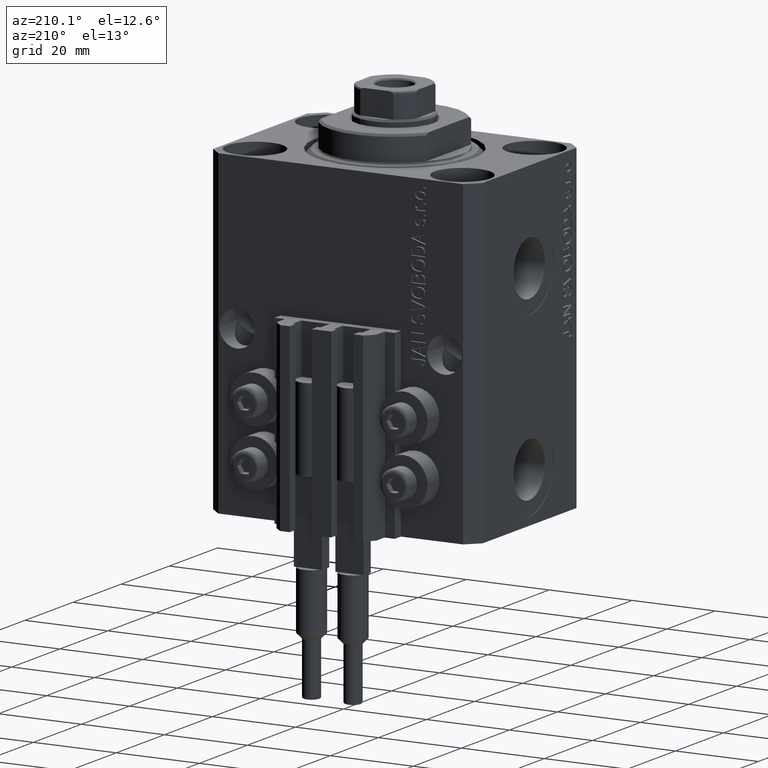
[diagram: clean part render]
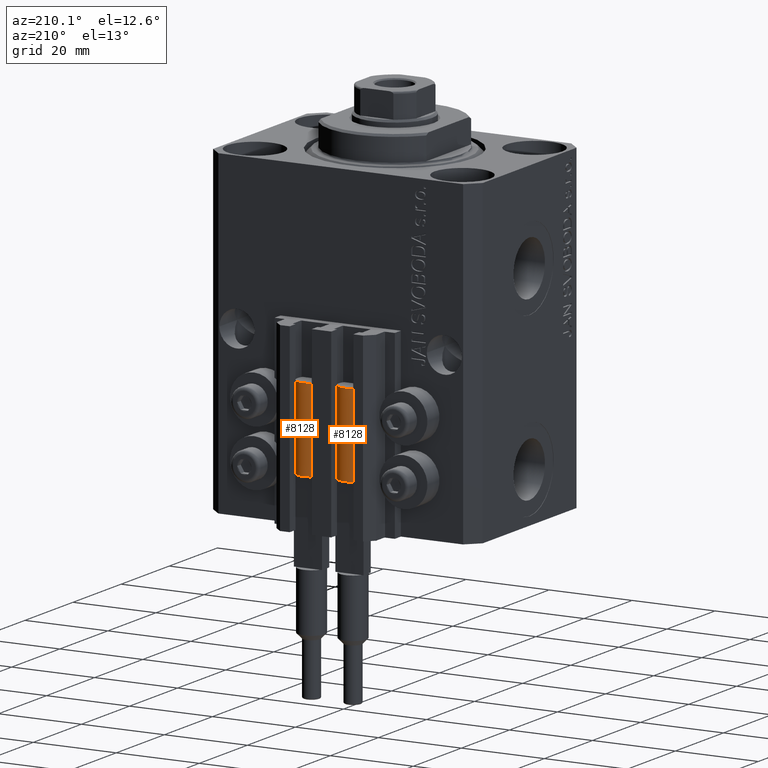
[diagram: same view with one multi-face feature highlighted, each face labeled with its STEP entity id]
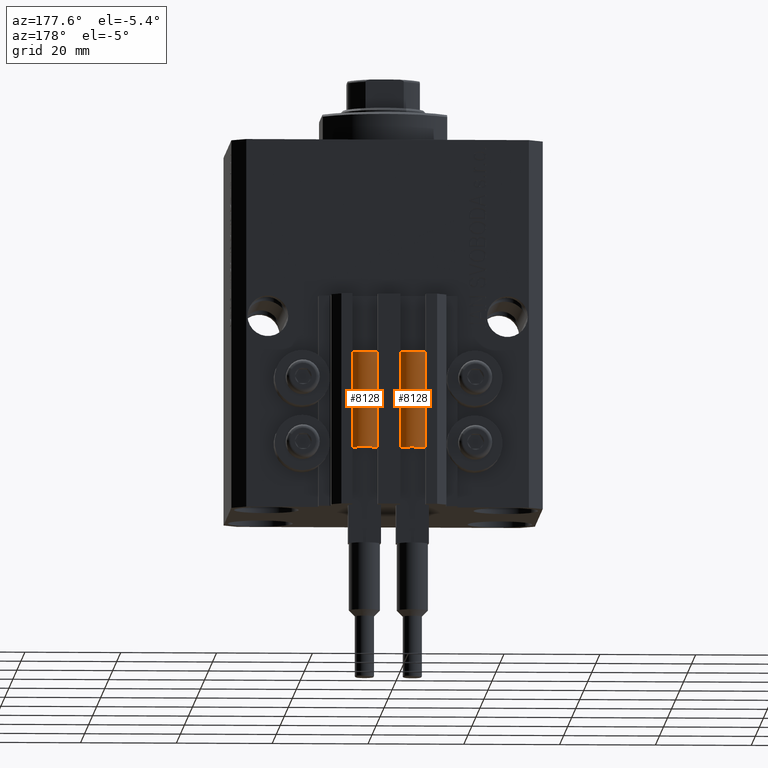
[diagram: same view with one multi-face feature highlighted, each face labeled with its STEP entity id]
A machine part, auxiliary view. The highlighted faces form ONE feature: a constant-radius fillet chain: 2 tangent blend faces with common blend radius 3.4 mm. The faces share edges in the B-rep.
A second angle (auxiliary view) of the same feature is appended — it is thin or edge-on in the first view.
Their STEP definitions:
[1] entity #8128 (Cylinder):
#1027 = EDGE_CURVE ( 'NONE', #12539, #29976, #39405, .T. ) ;
#1068 = CARTESIAN_POINT ( 'NONE',  ( 0.000000000000000000, 0.000000000000000000, 20.00000000000000000 ) ) ;
#1770 = DIRECTION ( 'NONE',  ( -1.000000000000000000, 0.000000000000000000, 0.000000000000000000 ) ) ;
#2874 = CARTESIAN_POINT ( 'NONE',  ( 0.000000000000000000, 0.000000000000000000, 0.000000000000000000 ) ) ;
#3753 = AXIS2_PLACEMENT_3D ( 'NONE', #40743, #25716, #22307 ) ;
#4671 = CARTESIAN_POINT ( 'NONE',  ( 3.400000000000000355, 4.163799117101001052E-16, 0.000000000000000000 ) ) ;
#7298 = ORIENTED_EDGE ( 'NONE', *, *, #35963, .T. ) ;
#7523 = ORIENTED_EDGE ( 'NONE', *, *, #44473, .F. ) ;
#8128 = ADVANCED_FACE ( 'NONE', ( #24105 ), #9055, .T. ) ;
#9055 = CYLINDRICAL_SURFACE ( 'NONE', #29451, 3.400000000000000355 ) ;
#9480 = CARTESIAN_POINT ( 'NONE',  ( -3.400000000000000355, 0.000000000000000000, 0.000000000000000000 ) ) ;
#9796 = LINE ( 'NONE', #24610, #30376 ) ;
#10410 = CARTESIAN_POINT ( 'NONE',  ( 0.000000000000000000, 0.000000000000000000, 20.00000000000000000 ) ) ;
#11337 = ORIENTED_EDGE ( 'NONE', *, *, #34976, .T. ) ;
#11481 = CARTESIAN_POINT ( 'NONE',  ( -3.399999999999999467, -4.915049848600952119E-16, 20.00000000000000000 ) ) ;
#12539 = VERTEX_POINT ( 'NONE', #45470 ) ;
#13059 = VERTEX_POINT ( 'NONE', #44825 ) ;
#13272 = ORIENTED_EDGE ( 'NONE', *, *, #37018, .F. ) ;
#13441 = ORIENTED_EDGE ( 'NONE', *, *, #1027, .F. ) ;
#16626 = CIRCLE ( 'NONE', #43744, 3.400000000000000355 ) ;
#17122 = VERTEX_POINT ( 'NONE', #4671 ) ;
#17681 = DIRECTION ( 'NONE',  ( 0.000000000000000000, 0.000000000000000000, 1.000000000000000000 ) ) ;
#17905 = EDGE_LOOP ( 'NONE', ( #7523, #11337, #7298, #13272, #13441, #24695 ) ) ;
#19176 = EDGE_CURVE ( 'NONE', #13059, #12539, #16626, .T. ) ;
#21690 = DIRECTION ( 'NONE',  ( 1.000000000000000000, 0.000000000000000000, 0.000000000000000000 ) ) ;
#21881 = VECTOR ( 'NONE', #37022, 1000.000000000000000 ) ;
#21996 = LINE ( 'NONE', #47475, #21881 ) ;
#22307 = DIRECTION ( 'NONE',  ( 1.000000000000000000, 0.000000000000000000, 0.000000000000000000 ) ) ;
#23389 = VERTEX_POINT ( 'NONE', #9480 ) ;
#24105 = FACE_OUTER_BOUND ( 'NONE', #17905, .T. ) ;
#24610 = CARTESIAN_POINT ( 'NONE',  ( 3.400000000000000355, 4.163799117101001052E-16, 20.00000000000000000 ) ) ;
#24695 = ORIENTED_EDGE ( 'NONE', *, *, #19176, .F. ) ;
#25716 = DIRECTION ( 'NONE',  ( 0.000000000000000000, 0.000000000000000000, 1.000000000000000000 ) ) ;
#26547 = CIRCLE ( 'NONE', #32710, 3.400000000000000355 ) ;
#28581 = CARTESIAN_POINT ( 'NONE',  ( 3.400000000000000355, 0.000000000000000000, 20.00000000000000000 ) ) ;
#29451 = AXIS2_PLACEMENT_3D ( 'NONE', #1068, #34537, #1770 ) ;
#29976 = VERTEX_POINT ( 'NONE', #11481 ) ;
#30376 = VECTOR ( 'NONE', #32595, 1000.000000000000000 ) ;
#32595 = DIRECTION ( 'NONE',  ( -0.000000000000000000, -0.000000000000000000, -1.000000000000000000 ) ) ;
#32710 = AXIS2_PLACEMENT_3D ( 'NONE', #2874, #17681, #38794 ) ;
#33663 = CIRCLE ( 'NONE', #46058, 3.400000000000000355 ) ;
#34537 = DIRECTION ( 'NONE',  ( -0.000000000000000000, -0.000000000000000000, -1.000000000000000000 ) ) ;
#34976 = EDGE_CURVE ( 'NONE', #46961, #17122, #9796, .T. ) ;
#35963 = EDGE_CURVE ( 'NONE', #17122, #23389, #26547, .T. ) ;
#37018 = EDGE_CURVE ( 'NONE', #29976, #23389, #21996, .T. ) ;
#37022 = DIRECTION ( 'NONE',  ( -0.000000000000000000, -0.000000000000000000, -1.000000000000000000 ) ) ;
#38794 = DIRECTION ( 'NONE',  ( 1.000000000000000000, 0.000000000000000000, 0.000000000000000000 ) ) ;
#39405 = CIRCLE ( 'NONE', #3753, 3.400000000000000355 ) ;
#40242 = DIRECTION ( 'NONE',  ( 0.000000000000000000, 0.000000000000000000, 1.000000000000000000 ) ) ;
#40743 = CARTESIAN_POINT ( 'NONE',  ( 0.000000000000000000, 0.000000000000000000, 20.00000000000000000 ) ) ;
#43744 = AXIS2_PLACEMENT_3D ( 'NONE', #10410, #40242, #47791 ) ;
#44012 = DIRECTION ( 'NONE',  ( 0.000000000000000000, 0.000000000000000000, 1.000000000000000000 ) ) ;
#44473 = EDGE_CURVE ( 'NONE', #46961, #13059, #33663, .T. ) ;
#44825 = CARTESIAN_POINT ( 'NONE',  ( 3.051229260478471428, 1.500000000000000000, 20.00000000000000000 ) ) ;
#45470 = CARTESIAN_POINT ( 'NONE',  ( -3.051229260478471428, 1.500000000000000000, 20.00000000000000000 ) ) ;
#46058 = AXIS2_PLACEMENT_3D ( 'NONE', #47418, #44012, #21690 ) ;
#46961 = VERTEX_POINT ( 'NONE', #28581 ) ;
#47418 = CARTESIAN_POINT ( 'NONE',  ( 0.000000000000000000, 0.000000000000000000, 20.00000000000000000 ) ) ;
#47475 = CARTESIAN_POINT ( 'NONE',  ( -3.400000000000000355, 0.000000000000000000, 20.00000000000000000 ) ) ;
#47791 = DIRECTION ( 'NONE',  ( 1.000000000000000000, 0.000000000000000000, 0.000000000000000000 ) ) ;
[2] entity #8128 (Cylinder):
#1027 = EDGE_CURVE ( 'NONE', #12539, #29976, #39405, .T. ) ;
#1068 = CARTESIAN_POINT ( 'NONE',  ( 0.000000000000000000, 0.000000000000000000, 20.00000000000000000 ) ) ;
#1770 = DIRECTION ( 'NONE',  ( -1.000000000000000000, 0.000000000000000000, 0.000000000000000000 ) ) ;
#2874 = CARTESIAN_POINT ( 'NONE',  ( 0.000000000000000000, 0.000000000000000000, 0.000000000000000000 ) ) ;
#3753 = AXIS2_PLACEMENT_3D ( 'NONE', #40743, #25716, #22307 ) ;
#4671 = CARTESIAN_POINT ( 'NONE',  ( 3.400000000000000355, 4.163799117101001052E-16, 0.000000000000000000 ) ) ;
#7298 = ORIENTED_EDGE ( 'NONE', *, *, #35963, .T. ) ;
#7523 = ORIENTED_EDGE ( 'NONE', *, *, #44473, .F. ) ;
#8128 = ADVANCED_FACE ( 'NONE', ( #24105 ), #9055, .T. ) ;
#9055 = CYLINDRICAL_SURFACE ( 'NONE', #29451, 3.400000000000000355 ) ;
#9480 = CARTESIAN_POINT ( 'NONE',  ( -3.400000000000000355, 0.000000000000000000, 0.000000000000000000 ) ) ;
#9796 = LINE ( 'NONE', #24610, #30376 ) ;
#10410 = CARTESIAN_POINT ( 'NONE',  ( 0.000000000000000000, 0.000000000000000000, 20.00000000000000000 ) ) ;
#11337 = ORIENTED_EDGE ( 'NONE', *, *, #34976, .T. ) ;
#11481 = CARTESIAN_POINT ( 'NONE',  ( -3.399999999999999467, -4.915049848600952119E-16, 20.00000000000000000 ) ) ;
#12539 = VERTEX_POINT ( 'NONE', #45470 ) ;
#13059 = VERTEX_POINT ( 'NONE', #44825 ) ;
#13272 = ORIENTED_EDGE ( 'NONE', *, *, #37018, .F. ) ;
#13441 = ORIENTED_EDGE ( 'NONE', *, *, #1027, .F. ) ;
#16626 = CIRCLE ( 'NONE', #43744, 3.400000000000000355 ) ;
#17122 = VERTEX_POINT ( 'NONE', #4671 ) ;
#17681 = DIRECTION ( 'NONE',  ( 0.000000000000000000, 0.000000000000000000, 1.000000000000000000 ) ) ;
#17905 = EDGE_LOOP ( 'NONE', ( #7523, #11337, #7298, #13272, #13441, #24695 ) ) ;
#19176 = EDGE_CURVE ( 'NONE', #13059, #12539, #16626, .T. ) ;
#21690 = DIRECTION ( 'NONE',  ( 1.000000000000000000, 0.000000000000000000, 0.000000000000000000 ) ) ;
#21881 = VECTOR ( 'NONE', #37022, 1000.000000000000000 ) ;
#21996 = LINE ( 'NONE', #47475, #21881 ) ;
#22307 = DIRECTION ( 'NONE',  ( 1.000000000000000000, 0.000000000000000000, 0.000000000000000000 ) ) ;
#23389 = VERTEX_POINT ( 'NONE', #9480 ) ;
#24105 = FACE_OUTER_BOUND ( 'NONE', #17905, .T. ) ;
#24610 = CARTESIAN_POINT ( 'NONE',  ( 3.400000000000000355, 4.163799117101001052E-16, 20.00000000000000000 ) ) ;
#24695 = ORIENTED_EDGE ( 'NONE', *, *, #19176, .F. ) ;
#25716 = DIRECTION ( 'NONE',  ( 0.000000000000000000, 0.000000000000000000, 1.000000000000000000 ) ) ;
#26547 = CIRCLE ( 'NONE', #32710, 3.400000000000000355 ) ;
#28581 = CARTESIAN_POINT ( 'NONE',  ( 3.400000000000000355, 0.000000000000000000, 20.00000000000000000 ) ) ;
#29451 = AXIS2_PLACEMENT_3D ( 'NONE', #1068, #34537, #1770 ) ;
#29976 = VERTEX_POINT ( 'NONE', #11481 ) ;
#30376 = VECTOR ( 'NONE', #32595, 1000.000000000000000 ) ;
#32595 = DIRECTION ( 'NONE',  ( -0.000000000000000000, -0.000000000000000000, -1.000000000000000000 ) ) ;
#32710 = AXIS2_PLACEMENT_3D ( 'NONE', #2874, #17681, #38794 ) ;
#33663 = CIRCLE ( 'NONE', #46058, 3.400000000000000355 ) ;
#34537 = DIRECTION ( 'NONE',  ( -0.000000000000000000, -0.000000000000000000, -1.000000000000000000 ) ) ;
#34976 = EDGE_CURVE ( 'NONE', #46961, #17122, #9796, .T. ) ;
#35963 = EDGE_CURVE ( 'NONE', #17122, #23389, #26547, .T. ) ;
#37018 = EDGE_CURVE ( 'NONE', #29976, #23389, #21996, .T. ) ;
#37022 = DIRECTION ( 'NONE',  ( -0.000000000000000000, -0.000000000000000000, -1.000000000000000000 ) ) ;
#38794 = DIRECTION ( 'NONE',  ( 1.000000000000000000, 0.000000000000000000, 0.000000000000000000 ) ) ;
#39405 = CIRCLE ( 'NONE', #3753, 3.400000000000000355 ) ;
#40242 = DIRECTION ( 'NONE',  ( 0.000000000000000000, 0.000000000000000000, 1.000000000000000000 ) ) ;
#40743 = CARTESIAN_POINT ( 'NONE',  ( 0.000000000000000000, 0.000000000000000000, 20.00000000000000000 ) ) ;
#43744 = AXIS2_PLACEMENT_3D ( 'NONE', #10410, #40242, #47791 ) ;
#44012 = DIRECTION ( 'NONE',  ( 0.000000000000000000, 0.000000000000000000, 1.000000000000000000 ) ) ;
#44473 = EDGE_CURVE ( 'NONE', #46961, #13059, #33663, .T. ) ;
#44825 = CARTESIAN_POINT ( 'NONE',  ( 3.051229260478471428, 1.500000000000000000, 20.00000000000000000 ) ) ;
#45470 = CARTESIAN_POINT ( 'NONE',  ( -3.051229260478471428, 1.500000000000000000, 20.00000000000000000 ) ) ;
#46058 = AXIS2_PLACEMENT_3D ( 'NONE', #47418, #44012, #21690 ) ;
#46961 = VERTEX_POINT ( 'NONE', #28581 ) ;
#47418 = CARTESIAN_POINT ( 'NONE',  ( 0.000000000000000000, 0.000000000000000000, 20.00000000000000000 ) ) ;
#47475 = CARTESIAN_POINT ( 'NONE',  ( -3.400000000000000355, 0.000000000000000000, 20.00000000000000000 ) ) ;
#47791 = DIRECTION ( 'NONE',  ( 1.000000000000000000, 0.000000000000000000, 0.000000000000000000 ) ) ;